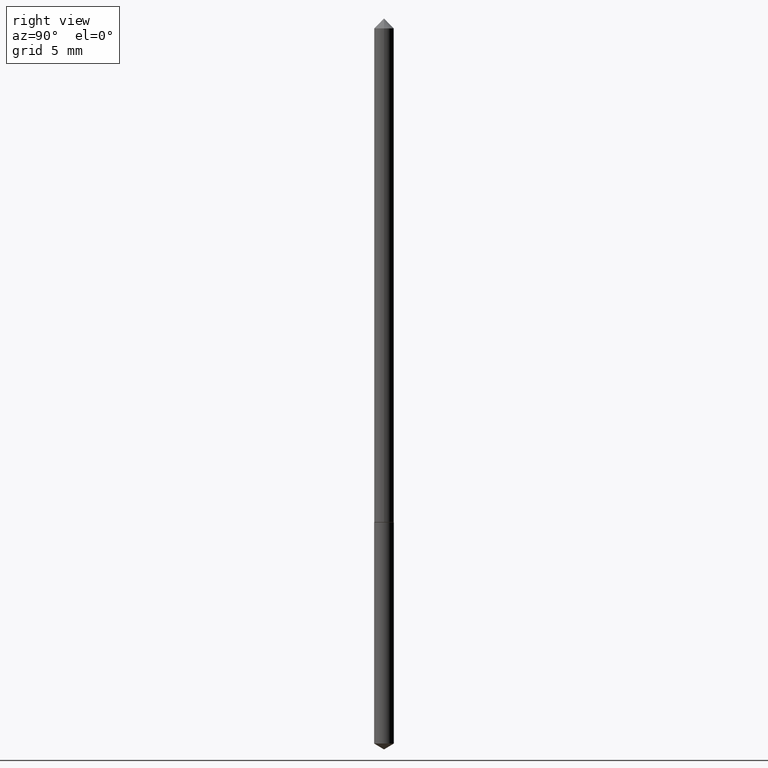
[diagram: clean part render]
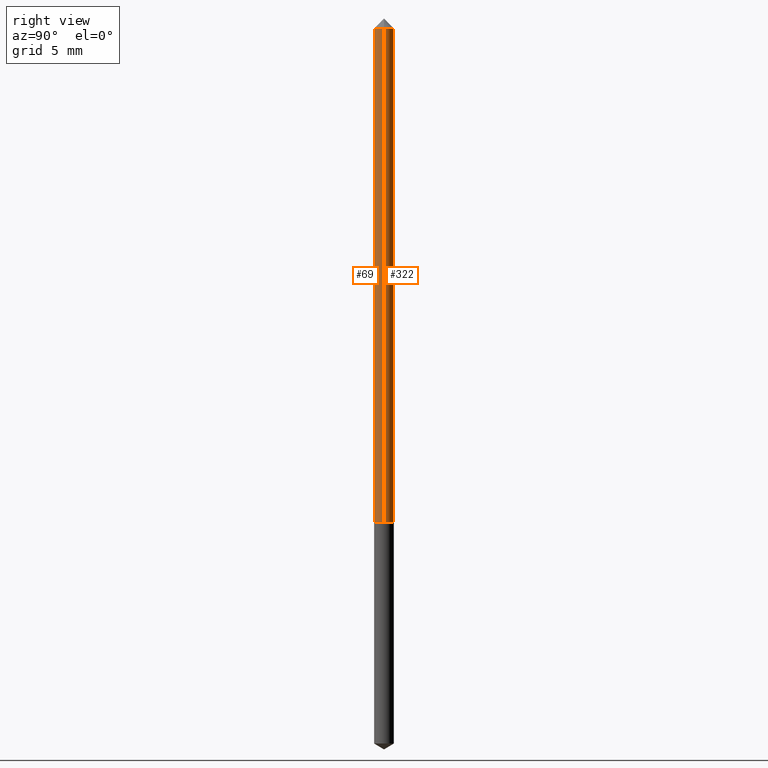
[diagram: same view with one multi-face feature highlighted, each face labeled with its STEP entity id]
A machine part, right view. The highlighted faces form ONE feature: a constant-radius fillet chain: 2 tangent blend faces with common blend radius 0.4001 mm. The faces share edges in the B-rep.
Their STEP definitions:
[1] entity #69 (Cylinder):
#3 = EDGE_CURVE ( 'NONE', #90, #74, #286, .T. ) ;
#6 = EDGE_CURVE ( 'NONE', #74, #347, #362, .T. ) ;
#33 = EDGE_CURVE ( 'NONE', #293, #347, #270, .T. ) ;
#42 = DIRECTION ( 'NONE',  ( -2.445468806185136597E-29, 3.491481338843145583E-15, 1.000000000000000000 ) ) ;
#44 = CARTESIAN_POINT ( 'NONE',  ( -0.01575000000000000358, -1.371358078891821821E-15, -0.03125000000000020123 ) ) ;
#55 = CYLINDRICAL_SURFACE ( 'NONE', #240, 0.01575000000000005215 ) ;
#69 = ADVANCED_FACE ( 'NONE', ( #87 ), #55, .T. ) ;
#74 = VERTEX_POINT ( 'NONE', #85 ) ;
#85 = CARTESIAN_POINT ( 'NONE',  ( 0.01575000000000009726, -2.967409989882790095E-15, -0.8184000000000001274 ) ) ;
#87 = FACE_OUTER_BOUND ( 'NONE', #222, .T. ) ;
#90 = VERTEX_POINT ( 'NONE', #318 ) ;
#92 = ORIENTED_EDGE ( 'NONE', *, *, #3, .T. ) ;
#94 = AXIS2_PLACEMENT_3D ( 'NONE', #224, #42, #122 ) ;
#102 = CARTESIAN_POINT ( 'NONE',  ( 0.01575000000000005215, -1.099816621735590636E-16, 7.679978421878623957E-31 ) ) ;
#107 = AXIS2_PLACEMENT_3D ( 'NONE', #187, #254, #358 ) ;
#122 = DIRECTION ( 'NONE',  ( 1.000000000000000000, -6.982962677686266711E-15, 0.000000000000000000 ) ) ;
#147 = DIRECTION ( 'NONE',  ( 1.000000000000000000, -6.982962677686266711E-15, 4.876176775795935793E-29 ) ) ;
#149 = VECTOR ( 'NONE', #364, 39.37007874015748143 ) ;
#170 = VECTOR ( 'NONE', #332, 39.37007874015748143 ) ;
#187 = CARTESIAN_POINT ( 'NONE',  ( 2.001371670981915796E-29, -2.857428327709230637E-15, -0.8184000000000001274 ) ) ;
#197 = EDGE_CURVE ( 'NONE', #90, #293, #339, .T. ) ;
#198 = DIRECTION ( 'NONE',  ( -2.445468806185136597E-29, 3.491481338843145583E-15, 1.000000000000000000 ) ) ;
#212 = ORIENTED_EDGE ( 'NONE', *, *, #33, .F. ) ;
#222 = EDGE_LOOP ( 'NONE', ( #319, #92, #281, #212 ) ) ;
#224 = CARTESIAN_POINT ( 'NONE',  ( 7.642090019328600035E-31, -1.091087918388489897E-16, -0.03125000000000020123 ) ) ;
#238 = CARTESIAN_POINT ( 'NONE',  ( 0.01575000000000000358, -2.190904540124077205E-16, -0.03125000000000020123 ) ) ;
#240 = AXIS2_PLACEMENT_3D ( 'NONE', #268, #198, #147 ) ;
#254 = DIRECTION ( 'NONE',  ( -2.445468806185136597E-29, 3.491481338843145583E-15, 1.000000000000000000 ) ) ;
#268 = CARTESIAN_POINT ( 'NONE',  ( 0.000000000000000000, 0.000000000000000000, 0.000000000000000000 ) ) ;
#270 = CIRCLE ( 'NONE', #94, 0.01575000000000000358 ) ;
#281 = ORIENTED_EDGE ( 'NONE', *, *, #6, .T. ) ;
#286 = CIRCLE ( 'NONE', #107, 0.01575000000000009726 ) ;
#293 = VERTEX_POINT ( 'NONE', #44 ) ;
#314 = CARTESIAN_POINT ( 'NONE',  ( -0.01575000000000005215, 1.119104808822161498E-16, -7.747322767151501157E-31 ) ) ;
#318 = CARTESIAN_POINT ( 'NONE',  ( -0.01575000000000009726, -2.745517846827014167E-15, -0.8184000000000001274 ) ) ;
#319 = ORIENTED_EDGE ( 'NONE', *, *, #197, .F. ) ;
#332 = DIRECTION ( 'NONE',  ( -2.445468806185136877E-29, 3.491481338843145188E-15, 1.000000000000000000 ) ) ;
#339 = LINE ( 'NONE', #314, #149 ) ;
#347 = VERTEX_POINT ( 'NONE', #238 ) ;
#358 = DIRECTION ( 'NONE',  ( 1.000000000000000000, -6.982962677686273810E-15, 0.000000000000000000 ) ) ;
#362 = LINE ( 'NONE', #102, #170 ) ;
#364 = DIRECTION ( 'NONE',  ( -2.445468806185136877E-29, 3.491481338843145188E-15, 1.000000000000000000 ) ) ;
[2] entity #322 (Cylinder):
#6 = EDGE_CURVE ( 'NONE', #74, #347, #362, .T. ) ;
#29 = DIRECTION ( 'NONE',  ( -2.445468806185136597E-29, 3.491481338843145583E-15, 1.000000000000000000 ) ) ;
#32 = ORIENTED_EDGE ( 'NONE', *, *, #197, .T. ) ;
#44 = CARTESIAN_POINT ( 'NONE',  ( -0.01575000000000000358, -1.371358078891821821E-15, -0.03125000000000020123 ) ) ;
#74 = VERTEX_POINT ( 'NONE', #85 ) ;
#78 = ORIENTED_EDGE ( 'NONE', *, *, #6, .F. ) ;
#84 = CIRCLE ( 'NONE', #262, 0.01575000000000000358 ) ;
#85 = CARTESIAN_POINT ( 'NONE',  ( 0.01575000000000009726, -2.967409989882790095E-15, -0.8184000000000001274 ) ) ;
#90 = VERTEX_POINT ( 'NONE', #318 ) ;
#96 = AXIS2_PLACEMENT_3D ( 'NONE', #288, #29, #111 ) ;
#102 = CARTESIAN_POINT ( 'NONE',  ( 0.01575000000000005215, -1.099816621735590636E-16, 7.679978421878623957E-31 ) ) ;
#111 = DIRECTION ( 'NONE',  ( 1.000000000000000000, -6.982962677686273810E-15, 0.000000000000000000 ) ) ;
#120 = ORIENTED_EDGE ( 'NONE', *, *, #266, .F. ) ;
#148 = FACE_OUTER_BOUND ( 'NONE', #203, .T. ) ;
#149 = VECTOR ( 'NONE', #364, 39.37007874015748143 ) ;
#155 = DIRECTION ( 'NONE',  ( 1.000000000000000000, -6.982962677686266711E-15, 0.000000000000000000 ) ) ;
#170 = VECTOR ( 'NONE', #332, 39.37007874015748143 ) ;
#175 = DIRECTION ( 'NONE',  ( -2.445468806185136597E-29, 3.491481338843145583E-15, 1.000000000000000000 ) ) ;
#197 = EDGE_CURVE ( 'NONE', #90, #293, #339, .T. ) ;
#203 = EDGE_LOOP ( 'NONE', ( #341, #32, #120, #78 ) ) ;
#205 = CARTESIAN_POINT ( 'NONE',  ( 0.000000000000000000, 0.000000000000000000, 0.000000000000000000 ) ) ;
#211 = DIRECTION ( 'NONE',  ( -2.445468806185136597E-29, 3.491481338843145583E-15, 1.000000000000000000 ) ) ;
#218 = AXIS2_PLACEMENT_3D ( 'NONE', #205, #211, #323 ) ;
#226 = EDGE_CURVE ( 'NONE', #74, #90, #329, .T. ) ;
#235 = CARTESIAN_POINT ( 'NONE',  ( 7.642090019328600035E-31, -1.091087918388489897E-16, -0.03125000000000020123 ) ) ;
#238 = CARTESIAN_POINT ( 'NONE',  ( 0.01575000000000000358, -2.190904540124077205E-16, -0.03125000000000020123 ) ) ;
#262 = AXIS2_PLACEMENT_3D ( 'NONE', #235, #175, #155 ) ;
#266 = EDGE_CURVE ( 'NONE', #347, #293, #84, .T. ) ;
#288 = CARTESIAN_POINT ( 'NONE',  ( 2.001371670981915796E-29, -2.857428327709230637E-15, -0.8184000000000001274 ) ) ;
#293 = VERTEX_POINT ( 'NONE', #44 ) ;
#294 = CYLINDRICAL_SURFACE ( 'NONE', #218, 0.01575000000000005215 ) ;
#314 = CARTESIAN_POINT ( 'NONE',  ( -0.01575000000000005215, 1.119104808822161498E-16, -7.747322767151501157E-31 ) ) ;
#318 = CARTESIAN_POINT ( 'NONE',  ( -0.01575000000000009726, -2.745517846827014167E-15, -0.8184000000000001274 ) ) ;
#322 = ADVANCED_FACE ( 'NONE', ( #148 ), #294, .T. ) ;
#323 = DIRECTION ( 'NONE',  ( 1.000000000000000000, -6.982962677686266711E-15, 4.876176775795935793E-29 ) ) ;
#329 = CIRCLE ( 'NONE', #96, 0.01575000000000009726 ) ;
#332 = DIRECTION ( 'NONE',  ( -2.445468806185136877E-29, 3.491481338843145188E-15, 1.000000000000000000 ) ) ;
#339 = LINE ( 'NONE', #314, #149 ) ;
#341 = ORIENTED_EDGE ( 'NONE', *, *, #226, .T. ) ;
#347 = VERTEX_POINT ( 'NONE', #238 ) ;
#362 = LINE ( 'NONE', #102, #170 ) ;
#364 = DIRECTION ( 'NONE',  ( -2.445468806185136877E-29, 3.491481338843145188E-15, 1.000000000000000000 ) ) ;